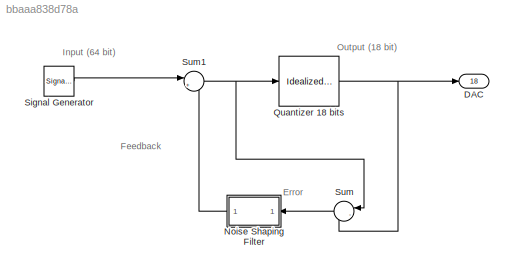
MODEL slx_bbaaa838d78a
KIND model
CONFIG AbsTol = auto
CONFIG FixedStep = auto
CONFIG MaxStep = auto
CONFIG MinStep = auto
CONFIG RelTol = 1e-3
CONFIG SampleTimeConstraint = Unconstrained
CONFIG Solver = ode45
CONFIG SolverMode = Auto
CONFIG SolverName = ode45
CONFIG StartTime = 0.0
CONFIG StopTime = 10.0
BLOCK [Outport] DAC
  IconDisplay = Port number
  Port = 18
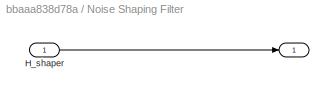
BLOCK [SubSystem] Noise Shaping Filter
  Ports = [1, 1]
  RequestExecContextInheritance = off
BLOCK [Outport] Noise Shaping Filter/ 
  IconDisplay = Port number
BLOCK [Inport] Noise Shaping Filter/H_shaper
  IconDisplay = Port number
BLOCK [Reference] Quantizer 18 bits  REF=simulink_extras/Additional
Discrete/Idealized ADC quantizer
  AttributesFormatString = (settings: %<NumberOfConverterBits>-bit converter\nVmin: %<Vmin>, Vmax: %<Vmax>)
  NumberOfConverterBits = 18
  OutputDataType = double
  OutputNegativeValues = on
  Ports = [1, 1]
  SourceBlock = simulink_extras/Additional\nDiscrete/Idealized ADC quantizer
  SourceType = IdealADC
  Vmax = 5
  Vmin = 0
BLOCK [SignalGenerator] Signal Generator
  Frequency = 100
  Ports = [0, 1]
  WaveForm = sawtooth
BLOCK [Sum] Sum
  IconShape = round
  InputSameDT = off
  Inputs = |-+
  OutDataTypeStr = Inherit: Inherit via internal rule
  Ports = [2, 1]
  SaturateOnIntegerOverflow = off
BLOCK [Sum] Sum1
  IconShape = round
  InputSameDT = off
  Inputs = |++
  OutDataTypeStr = Inherit: Inherit via internal rule
  Ports = [2, 1]
  SaturateOnIntegerOverflow = off
ANNOTATION (root): Error
ANNOTATION (root): Feedback
ANNOTATION (root): Input (64 bit)
ANNOTATION (root): Output (18 bit)
LINE Noise Shaping Filter/H_shaper:1 -> Noise Shaping Filter/ :1
LINE Noise Shaping Filter:1 -> Sum1:2
NET Quantizer 18 bits:1 -> DAC:1, Sum:2
LINE Signal Generator:1 -> Sum1:1
NET Sum1:1 -> Quantizer 18 bits:1, Sum:1
LINE Sum:1 -> Noise Shaping Filter:1
note: NET lines group one-source signal fan-out (src -> all destinations, sorted); 1:1 wires keep LINE
